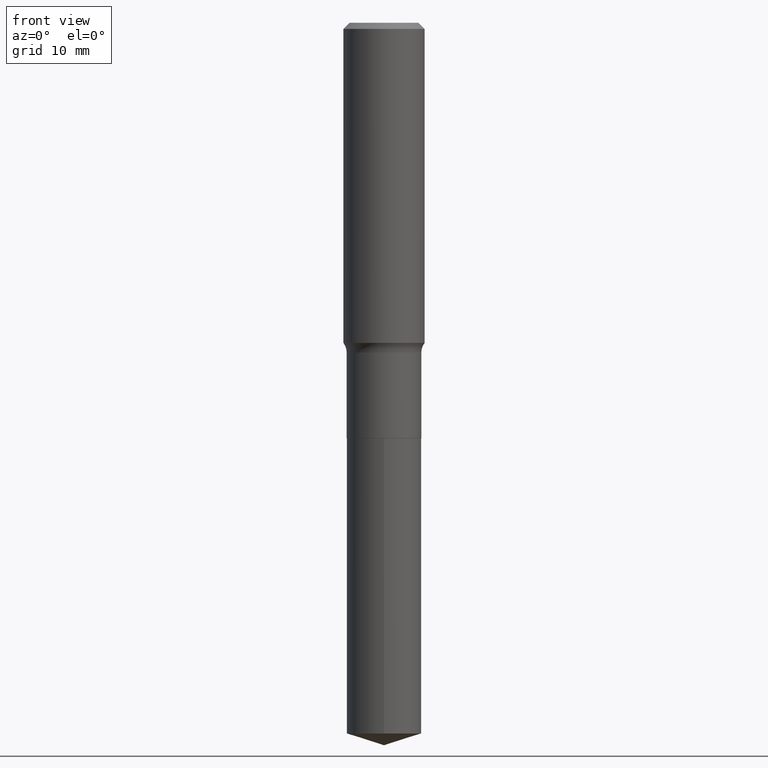
[diagram: clean part render]
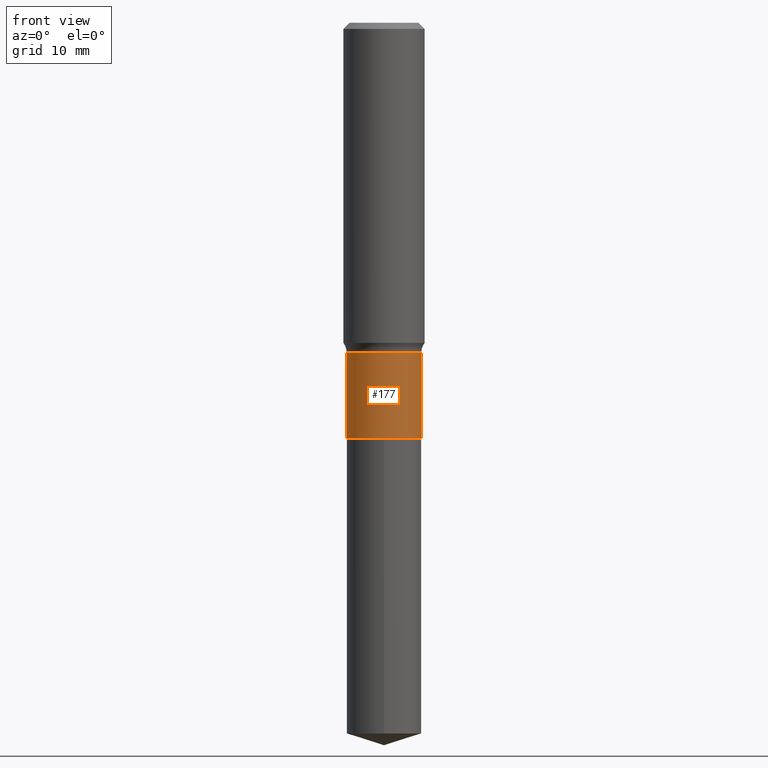
[diagram: same view with one face highlighted and labeled with its STEP entity id]
A machine part, front view. The second image highlights one B-rep face of the part: STEP entity #177.
In plain terms, the highlighted cylindrical surface (partial cylindrical patch) has radius 4.5999 mm, axis along (-0, 0, 1).
Its self-contained STEP definition (entity closure, byte-faithful):
#13 = DIRECTION ( 'NONE',  ( -2.445468806185136877E-29, 3.491481338843145188E-15, 1.000000000000000000 ) ) ;
#18 = CYLINDRICAL_SURFACE ( 'NONE', #342, 0.1811000000000000110 ) ;
#25 = CARTESIAN_POINT ( 'NONE',  ( 0.000000000000000000, 0.000000000000000000, 0.000000000000000000 ) ) ;
#29 = AXIS2_PLACEMENT_3D ( 'NONE', #153, #111, #457 ) ;
#57 = EDGE_CURVE ( 'NONE', #232, #223, #375, .T. ) ;
#59 = DIRECTION ( 'NONE',  ( 1.000000000000000000, -6.982962677686266711E-15, 4.876176775795936353E-29 ) ) ;
#60 = VECTOR ( 'NONE', #487, 39.37007874015748143 ) ;
#73 = CARTESIAN_POINT ( 'NONE',  ( -0.1810999999999999832, -5.023012181095790067E-15, -1.599199999999999733 ) ) ;
#88 = ORIENTED_EDGE ( 'NONE', *, *, #110, .F. ) ;
#110 = EDGE_CURVE ( 'NONE', #271, #309, #349, .T. ) ;
#111 = DIRECTION ( 'NONE',  ( -2.445468806185136597E-29, 3.491481338843145583E-15, 1.000000000000000000 ) ) ;
#112 = CIRCLE ( 'NONE', #29, 0.1811000000000000110 ) ;
#153 = CARTESIAN_POINT ( 'NONE',  ( 4.928108738224286960E-29, -7.036033194036706451E-15, -2.015199999999999658 ) ) ;
#156 = FACE_OUTER_BOUND ( 'NONE', #361, .T. ) ;
#158 = EDGE_CURVE ( 'NONE', #309, #223, #397, .T. ) ;
#174 = AXIS2_PLACEMENT_3D ( 'NONE', #274, #235, #301 ) ;
#177 = ADVANCED_FACE ( 'NONE', ( #156 ), #18, .T. ) ;
#179 = CARTESIAN_POINT ( 'NONE',  ( -0.1811000000000000110, -5.023012181095790067E-15, -2.015199999999999658 ) ) ;
#200 = ORIENTED_EDGE ( 'NONE', *, *, #449, .T. ) ;
#216 = CARTESIAN_POINT ( 'NONE',  ( 0.1810999999999999832, -6.848191498006940046E-15, -1.599199999999999733 ) ) ;
#223 = VERTEX_POINT ( 'NONE', #216 ) ;
#232 = VERTEX_POINT ( 'NONE', #413 ) ;
#235 = DIRECTION ( 'NONE',  ( -2.445468806185136597E-29, 3.491481338843145583E-15, 1.000000000000000000 ) ) ;
#236 = ORIENTED_EDGE ( 'NONE', *, *, #57, .T. ) ;
#250 = VECTOR ( 'NONE', #13, 39.37007874015748143 ) ;
#271 = VERTEX_POINT ( 'NONE', #179 ) ;
#272 = ORIENTED_EDGE ( 'NONE', *, *, #158, .F. ) ;
#274 = CARTESIAN_POINT ( 'NONE',  ( 3.910793714851269512E-29, -5.583576957077957107E-15, -1.599199999999999733 ) ) ;
#301 = DIRECTION ( 'NONE',  ( 1.000000000000000000, -6.982962677686267499E-15, 0.000000000000000000 ) ) ;
#309 = VERTEX_POINT ( 'NONE', #73 ) ;
#342 = AXIS2_PLACEMENT_3D ( 'NONE', #25, #393, #59 ) ;
#349 = LINE ( 'NONE', #380, #250 ) ;
#361 = EDGE_LOOP ( 'NONE', ( #88, #200, #236, #272 ) ) ;
#375 = LINE ( 'NONE', #424, #60 ) ;
#380 = CARTESIAN_POINT ( 'NONE',  ( -0.1811000000000000110, 1.286792894461541515E-15, -8.908191448451634438E-30 ) ) ;
#393 = DIRECTION ( 'NONE',  ( -2.445468806185136597E-29, 3.491481338843145583E-15, 1.000000000000000000 ) ) ;
#397 = CIRCLE ( 'NONE', #174, 0.1810999999999999832 ) ;
#413 = CARTESIAN_POINT ( 'NONE',  ( 0.1811000000000000110, -8.300647734965688602E-15, -2.015199999999999658 ) ) ;
#424 = CARTESIAN_POINT ( 'NONE',  ( 0.1811000000000000110, -1.264614540928982939E-15, 8.830756140966441615E-30 ) ) ;
#449 = EDGE_CURVE ( 'NONE', #271, #232, #112, .T. ) ;
#457 = DIRECTION ( 'NONE',  ( 1.000000000000000000, -6.982962677686266711E-15, 0.000000000000000000 ) ) ;
#487 = DIRECTION ( 'NONE',  ( -2.445468806185136877E-29, 3.491481338843145188E-15, 1.000000000000000000 ) ) ;